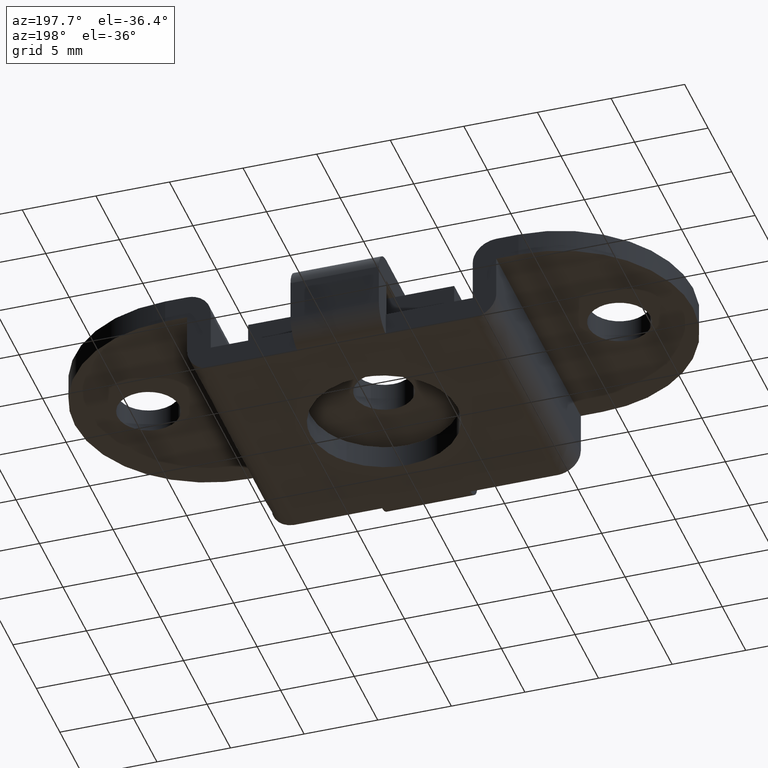
[diagram: clean part render]
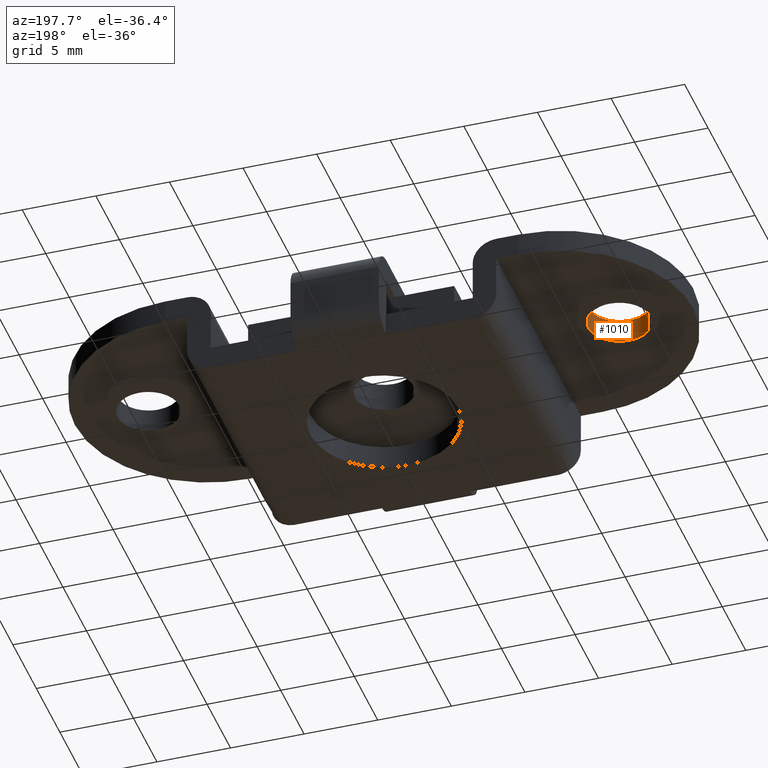
[diagram: same view with one face highlighted and labeled with its STEP entity id]
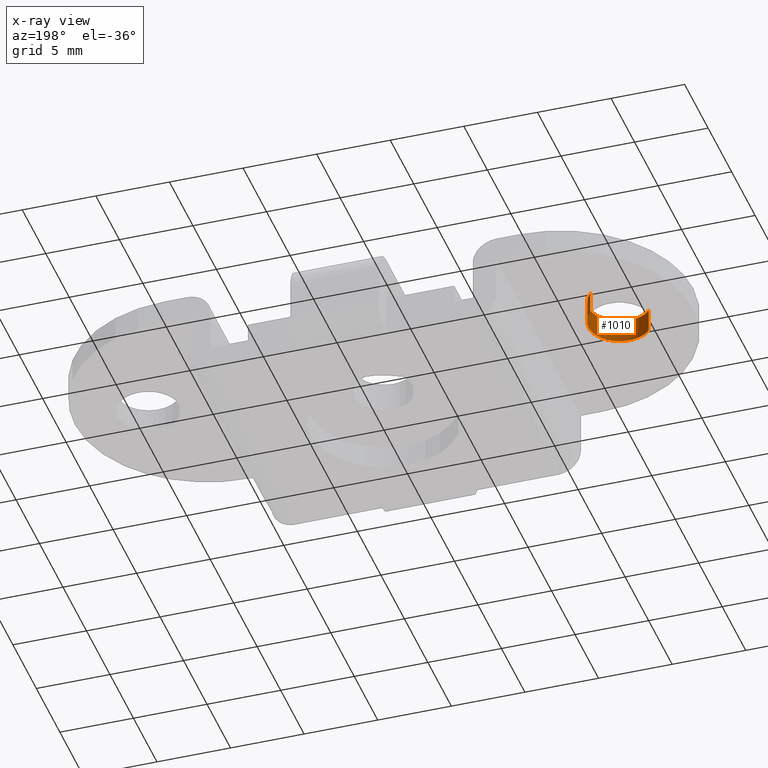
[diagram: x-ray of the same camera — body ghosted, the highlighted face saturated]
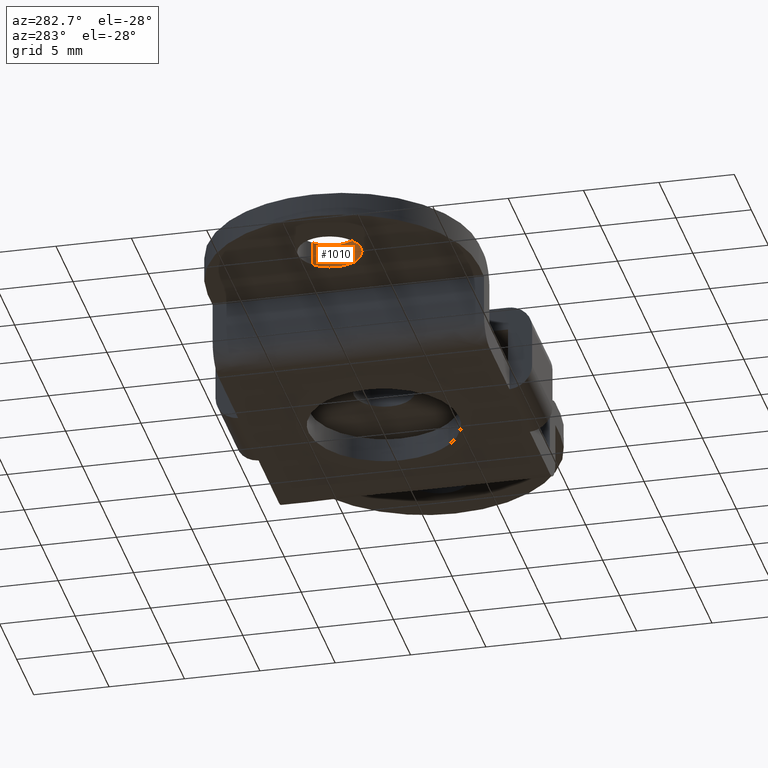
[diagram: same view with one face highlighted and labeled with its STEP entity id]
A machine part, auxiliary view. The second image highlights one B-rep face of the part: STEP entity #1010.
The next image is the same camera in x-ray: the body ghosted, the highlighted face saturated — about 0% of this face is hidden behind the body in this view.
A second angle (auxiliary view) of the same face is appended — the face is thin or edge-on in the first view.
In plain terms, the highlighted face is a freeform B-spline surface patch.
Its self-contained STEP definition (entity closure, byte-faithful):
#818=CARTESIAN_POINT('',(-14.476713900647679,1.445544507287878,4.400000000002642));
#819=VERTEX_POINT('',#818);
#832=CARTESIAN_POINT('',(-14.476713900802160,1.445544507450665,6.0));
#833=VERTEX_POINT('',#832);
#834=CARTESIAN_POINT('',(-14.476713900647679,1.445544507287878,4.400000000002642));
#835=CARTESIAN_POINT('',(-14.476713900802160,1.445544507450665,6.0));
#836=QUASI_UNIFORM_CURVE('',1,(#834,#835),.UNSPECIFIED.,.F.,.U.);
#837=EDGE_CURVE('',#819,#833,#836,.T.);
#865=CARTESIAN_POINT('',(-17.523286099197840,-1.445544507450659,6.0));
#866=VERTEX_POINT('',#865);
#877=CARTESIAN_POINT('',(-17.523286099352319,-1.445544507287873,4.400000000002641));
#878=VERTEX_POINT('',#877);
#879=CARTESIAN_POINT('',(-17.523286099352319,-1.445544507287873,4.400000000002641));
#880=CARTESIAN_POINT('',(-17.523286099197840,-1.445544507450659,6.0));
#881=QUASI_UNIFORM_CURVE('',1,(#879,#880),.UNSPECIFIED.,.F.,.U.);
#882=EDGE_CURVE('',#878,#866,#881,.T.);
#913=CARTESIAN_POINT('',(-17.523286179125812,-1.445544608956883,4.360000000000000));
#914=CARTESIAN_POINT('',(-16.077741570168929,-2.968830788082685,4.360000000000001));
#915=CARTESIAN_POINT('',(-14.554455391043120,-1.523286179125803,4.360000000000000));
#916=CARTESIAN_POINT('',(-13.031169211917316,-0.077741570168921,4.360000000000001));
#917=CARTESIAN_POINT('',(-14.476713820874201,1.445544608956883,4.360000000000000));
#918=CARTESIAN_POINT('',(-17.523286179125812,-1.445544608956883,6.041000000000000));
#919=CARTESIAN_POINT('',(-16.077741570168929,-2.968830788082685,6.041000000000002));
#920=CARTESIAN_POINT('',(-14.554455391043120,-1.523286179125803,6.041000000000000));
#921=CARTESIAN_POINT('',(-13.031169211917316,-0.077741570168921,6.041000000000002));
#922=CARTESIAN_POINT('',(-14.476713820874201,1.445544608956883,6.041000000000000));
#930=(BOUNDED_SURFACE()B_SPLINE_SURFACE(2,1,((#913,#918),(#914,#919),(#915,#920),(#916,#921),(#917,#922)),.UNSPECIFIED.,.F.,.F.,.U.)B_SPLINE_SURFACE_WITH_KNOTS((3,2,3),(2,2),(0.0,3.479393923934003,6.958787847868006),(0.0,1.0),.UNSPECIFIED.)GEOMETRIC_REPRESENTATION_ITEM()RATIONAL_B_SPLINE_SURFACE(((1.0,1.0),(0.707106781186548,0.707106781186548),(1.0,1.0),(0.707106781186548,0.707106781186548),(1.0,1.0)))REPRESENTATION_ITEM('')SURFACE());
#931=CARTESIAN_POINT('',(-13.900000000000000,0.0,4.400000000000000));
#932=VERTEX_POINT('',#931);
#933=CARTESIAN_POINT('',(-13.900000000000000,0.0,4.400000000000000));
#934=CARTESIAN_POINT('',(-13.899973720538410,0.149473633320658,4.400000000000284));
#935=CARTESIAN_POINT('',(-13.927607591674001,0.406886191171341,4.400000000000727));
#936=CARTESIAN_POINT('',(-14.037393853083710,0.773939174137046,4.400000000001428));
#937=CARTESIAN_POINT('',(-14.206511871971889,1.118130529014322,4.400000000002069));
#938=CARTESIAN_POINT('',(-14.373807492829380,1.337136670077123,4.400000000002396));
#939=CARTESIAN_POINT('',(-14.476713900647679,1.445544507287878,4.400000000002642));
#940=B_SPLINE_CURVE_WITH_KNOTS('',3,(#933,#934,#935,#936,#937,#938,#939),.UNSPECIFIED.,.F.,.U.,(4,1,1,1,4),(0.000000010959318,0.448416419932808,0.772278667828117,1.145951143493711,1.594367552460679),.UNSPECIFIED.);
#941=EDGE_CURVE('',#932,#819,#940,.T.);
#942=ORIENTED_EDGE('',*,*,#941,.F.);
#943=CARTESIAN_POINT('',(-15.999999487898320,-2.099999999999938,4.400000000000000));
#944=VERTEX_POINT('',#943);
#945=CARTESIAN_POINT('',(-15.999999487898320,-2.099999999999938,4.400000000000000));
#946=CARTESIAN_POINT('',(-15.871146757570960,-2.100009392769203,4.400000000000002));
#947=CARTESIAN_POINT('',(-15.579069797437260,-2.073056605648473,4.400000000000005));
#948=CARTESIAN_POINT('',(-15.199083691374350,-1.955235411441209,4.399999999999992));
#949=CARTESIAN_POINT('',(-14.819242544787411,-1.752218938414870,4.400000000000019));
#950=CARTESIAN_POINT('',(-14.503453307893389,-1.496274343173250,4.399999999999944));
#951=CARTESIAN_POINT('',(-14.222986807841179,-1.145835394127947,4.400000000000119));
#952=CARTESIAN_POINT('',(-14.030372438780001,-0.768973838268201,4.399999999999755));
#953=CARTESIAN_POINT('',(-13.922191201528070,-0.377968447045602,4.400000000000193));
#954=CARTESIAN_POINT('',(-13.899992112610130,-0.120260681585283,4.399999999999857));
#955=CARTESIAN_POINT('',(-13.900000000000000,0.0,4.400000000000000));
#956=B_SPLINE_CURVE_WITH_KNOTS('',3,(#945,#946,#947,#948,#949,#950,#951,#952,#953,#954,#955),.UNSPECIFIED.,.F.,.U.,(4,1,1,1,1,1,1,1,4),(0.000000046266399,0.386563756360412,0.876216372628762,1.185474047194867,1.675103511967079,2.087445731203625,2.525562153510227,2.937908026480077,3.298692695409619),.UNSPECIFIED.);
#957=EDGE_CURVE('',#944,#932,#956,.T.);
#958=ORIENTED_EDGE('',*,*,#957,.F.);
#959=CARTESIAN_POINT('',(-17.523286099352319,-1.445544507287873,4.400000000002641));
#960=CARTESIAN_POINT('',(-17.431641935819851,-1.542138163062824,4.400000000002481));
#961=CARTESIAN_POINT('',(-17.223170771685052,-1.723659901659075,4.400000000002125));
#962=CARTESIAN_POINT('',(-16.859239532543828,-1.932015604121355,4.400000000001481));
#963=CARTESIAN_POINT('',(-16.443820497797880,-2.068292419266052,4.400000000000775));
#964=CARTESIAN_POINT('',(-16.150904073822801,-2.100021754068149,4.400000000000262));
#965=CARTESIAN_POINT('',(-15.999999487898320,-2.099999999999938,4.400000000000000));
#966=B_SPLINE_CURVE_WITH_KNOTS('',3,(#959,#960,#961,#962,#963,#964,#965),.UNSPECIFIED.,.F.,.U.,(4,1,1,1,4),(0.000000013370095,0.399450990029573,0.825540147802814,1.251613939462105,1.704325912235111),.UNSPECIFIED.);
#967=EDGE_CURVE('',#878,#944,#966,.T.);
#968=ORIENTED_EDGE('',*,*,#967,.F.);
#969=ORIENTED_EDGE('',*,*,#882,.T.);
#970=CARTESIAN_POINT('',(-15.999999487898320,-2.099999999999938,6.0));
#971=VERTEX_POINT('',#970);
#972=CARTESIAN_POINT('',(-17.523286099197840,-1.445544507450659,6.0));
#973=CARTESIAN_POINT('',(-17.431641949486931,-1.542137640411951,6.000000000000003));
#974=CARTESIAN_POINT('',(-17.223169624313751,-1.723658990078200,6.0));
#975=CARTESIAN_POINT('',(-16.843757964454859,-1.940896776863872,6.000000000000024));
#976=CARTESIAN_POINT('',(-16.426074551988890,-2.072062016538133,5.999999999999944));
#977=CARTESIAN_POINT('',(-16.133148976420149,-2.100011490689612,6.000000000000023));
#978=CARTESIAN_POINT('',(-15.999999487898320,-2.099999999999938,6.0));
#979=B_SPLINE_CURVE_WITH_KNOTS('',3,(#972,#973,#974,#975,#976,#977,#978),.UNSPECIFIED.,.F.,.U.,(4,1,1,1,4),(0.000000013369385,0.399450989976564,0.825540147693789,1.304874935396144,1.704325912010689),.UNSPECIFIED.);
#980=EDGE_CURVE('',#866,#971,#979,.T.);
#981=ORIENTED_EDGE('',*,*,#980,.T.);
#982=CARTESIAN_POINT('',(-13.900000000000000,0.0,6.0));
#983=VERTEX_POINT('',#982);
#984=CARTESIAN_POINT('',(-15.999999487898320,-2.099999999999938,6.0));
#985=CARTESIAN_POINT('',(-15.871146813442820,-2.100009352253163,6.000000000000010));
#986=CARTESIAN_POINT('',(-15.579069460164730,-2.073056836228151,5.999999999999992));
#987=CARTESIAN_POINT('',(-15.199084391894370,-1.955235297415357,6.000000000000008));
#988=CARTESIAN_POINT('',(-14.819247095116800,-1.752214739977726,5.999999999999973));
#989=CARTESIAN_POINT('',(-14.463104890885230,-1.463625838826628,6.000000000000068));
#990=CARTESIAN_POINT('',(-14.179096144232320,-1.080672087322911,5.999999999999859));
#991=CARTESIAN_POINT('',(-13.958993124757960,-0.584044329764930,6.000000000000028));
#992=CARTESIAN_POINT('',(-13.899838745501500,-0.231965859635390,6.000000000000007));
#993=CARTESIAN_POINT('',(-13.900000000000000,0.0,6.0));
#994=B_SPLINE_CURVE_WITH_KNOTS('',3,(#984,#985,#986,#987,#988,#989,#990,#991,#992,#993),.UNSPECIFIED.,.F.,.U.,(4,1,1,1,1,1,1,4),(0.000000046266399,0.386563756360412,0.876216372628762,1.185474047194867,1.675103511967079,2.242075191242816,2.602876301059142,3.298692695409619),.UNSPECIFIED.);
#995=EDGE_CURVE('',#971,#983,#994,.T.);
#996=ORIENTED_EDGE('',*,*,#995,.T.);
#997=CARTESIAN_POINT('',(-13.900000000000000,0.0,6.0));
#998=CARTESIAN_POINT('',(-13.899975906333349,0.149473408352246,5.999999999999991));
#999=CARTESIAN_POINT('',(-13.925825652329371,0.390275975504320,6.0));
#1000=CARTESIAN_POINT('',(-14.031154425482280,0.758299581505137,5.999999999999999));
#1001=CARTESIAN_POINT('',(-14.196370853570180,1.104855756144075,6.000000000000033));
#1002=CARTESIAN_POINT('',(-14.373805741293790,1.337137675406299,5.999999999999973));
#1003=CARTESIAN_POINT('',(-14.476713900802160,1.445544507450665,6.0));
#1004=B_SPLINE_CURVE_WITH_KNOTS('',3,(#997,#998,#999,#1000,#1001,#1002,#1003),.UNSPECIFIED.,.F.,.U.,(4,1,1,1,4),(0.000000010960096,0.448416419996520,0.722448413894702,1.145951143655223,1.594367552685096),.UNSPECIFIED.);
#1005=EDGE_CURVE('',#983,#833,#1004,.T.);
#1006=ORIENTED_EDGE('',*,*,#1005,.T.);
#1007=ORIENTED_EDGE('',*,*,#837,.F.);
#1008=EDGE_LOOP('',(#942,#958,#968,#969,#981,#996,#1006,#1007));
#1009=FACE_OUTER_BOUND('',#1008,.T.);
#1010=ADVANCED_FACE('',(#1009),#930,.F.);